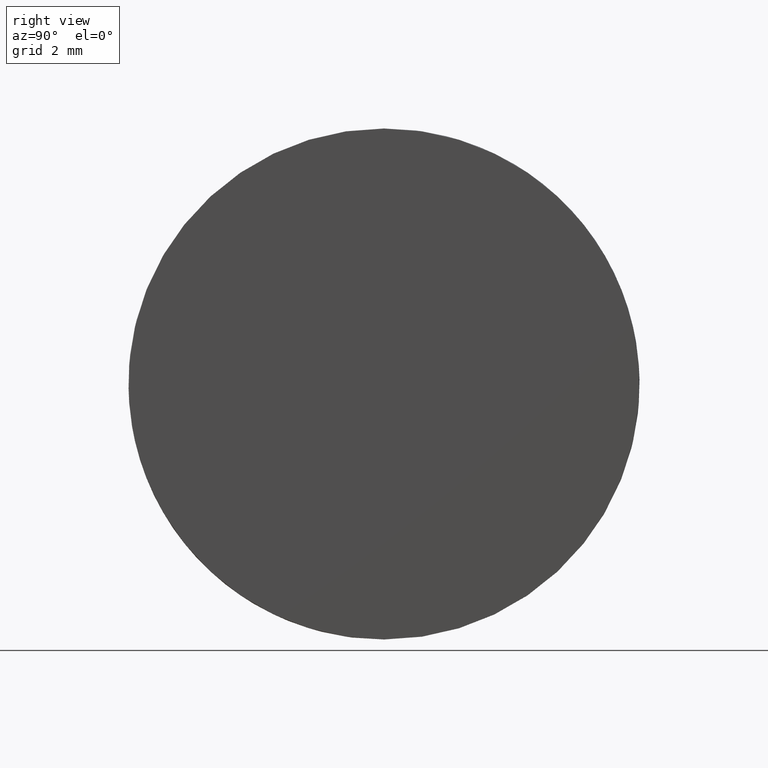
[diagram: clean part render]
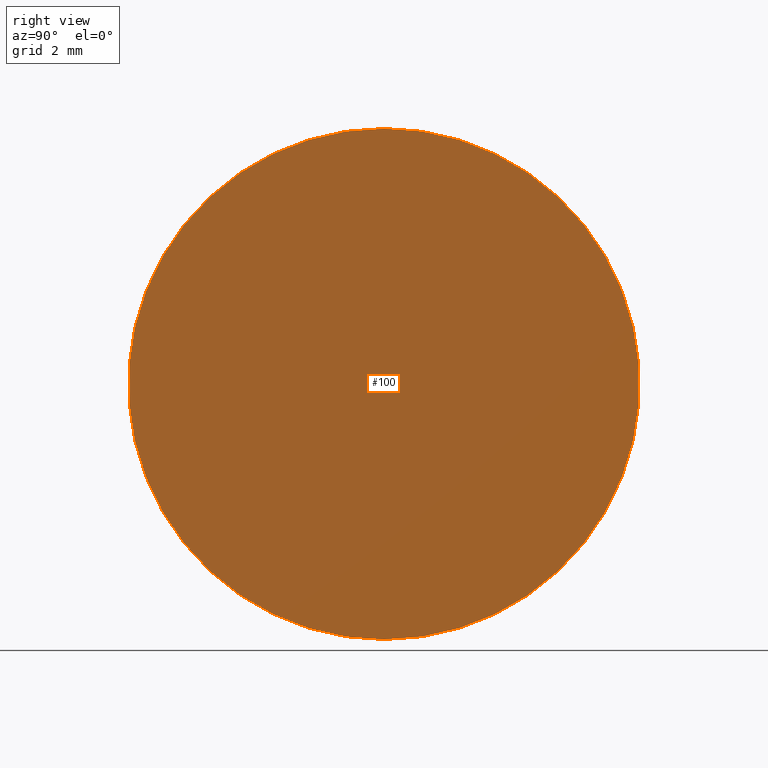
[diagram: same view with one face highlighted and labeled with its STEP entity id]
A machine part, right view. The second image highlights one B-rep face of the part: STEP entity #100.
In plain terms, the highlighted planar face has unit normal (1, 0, -0).
Its self-contained STEP definition (entity closure, byte-faithful):
#3 = DIRECTION ( 'NONE',  ( 0.0000000000000000000, 0.0000000000000000000, -1.000000000000000000 ) ) ;
#7 = DIRECTION ( 'NONE',  ( 0.0000000000000000000, 0.0000000000000000000, -1.000000000000000000 ) ) ;
#11 = AXIS2_PLACEMENT_3D ( 'NONE', #185, #89, #7 ) ;
#19 = CIRCLE ( 'NONE', #116, 6.250000000000000000 ) ;
#29 = DIRECTION ( 'NONE',  ( 1.000000000000000000, 0.0000000000000000000, -2.775557561562893300E-016 ) ) ;
#30 = ORIENTED_EDGE ( 'NONE', *, *, #157, .T. ) ;
#36 = VERTEX_POINT ( 'NONE', #119 ) ;
#50 = DIRECTION ( 'NONE',  ( -2.775557561562893300E-016, 0.0000000000000000000, -1.000000000000000000 ) ) ;
#52 = DIRECTION ( 'NONE',  ( 1.000000000000000000, -2.465190328815661300E-032, -2.497546408665961200E-016 ) ) ;
#56 = AXIS2_PLACEMENT_3D ( 'NONE', #162, #29, #50 ) ;
#89 = DIRECTION ( 'NONE',  ( 1.000000000000000000, -2.465190328815661300E-032, -2.497546408665961200E-016 ) ) ;
#93 = ORIENTED_EDGE ( 'NONE', *, *, #134, .T. ) ;
#100 = ADVANCED_FACE ( 'NONE', ( #154 ), #136, .T. ) ;
#105 = CARTESIAN_POINT ( 'NONE',  ( -18.72479566514874000, 6.250000000000000000, -6.995608218053836800E-018 ) ) ;
#115 = CARTESIAN_POINT ( 'NONE',  ( -18.72479566514874000, 6.250000000000000900, 6.250000000000000000 ) ) ;
#116 = AXIS2_PLACEMENT_3D ( 'NONE', #105, #52, #3 ) ;
#119 = CARTESIAN_POINT ( 'NONE',  ( -18.72479566514874000, 6.250000000000000000, -6.250000000000000000 ) ) ;
#120 = CIRCLE ( 'NONE', #11, 6.250000000000000000 ) ;
#134 = EDGE_CURVE ( 'NONE', #36, #176, #19, .T. ) ;
#136 = PLANE ( 'NONE',  #56 ) ;
#154 = FACE_OUTER_BOUND ( 'NONE', #202, .T. ) ;
#157 = EDGE_CURVE ( 'NONE', #176, #36, #120, .T. ) ;
#162 = CARTESIAN_POINT ( 'NONE',  ( -18.72479566514874000, 12.50000000000000000, -6.249999999999992000 ) ) ;
#176 = VERTEX_POINT ( 'NONE', #115 ) ;
#185 = CARTESIAN_POINT ( 'NONE',  ( -18.72479566514874000, 6.250000000000000000, -6.995608218053836800E-018 ) ) ;
#202 = EDGE_LOOP ( 'NONE', ( #93, #30 ) ) ;